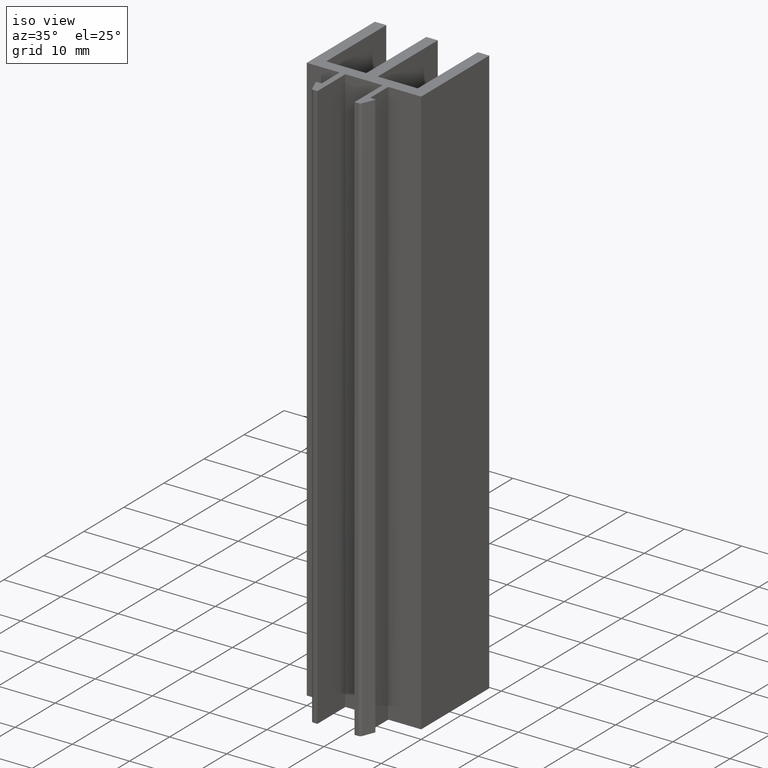
[diagram: clean part render]
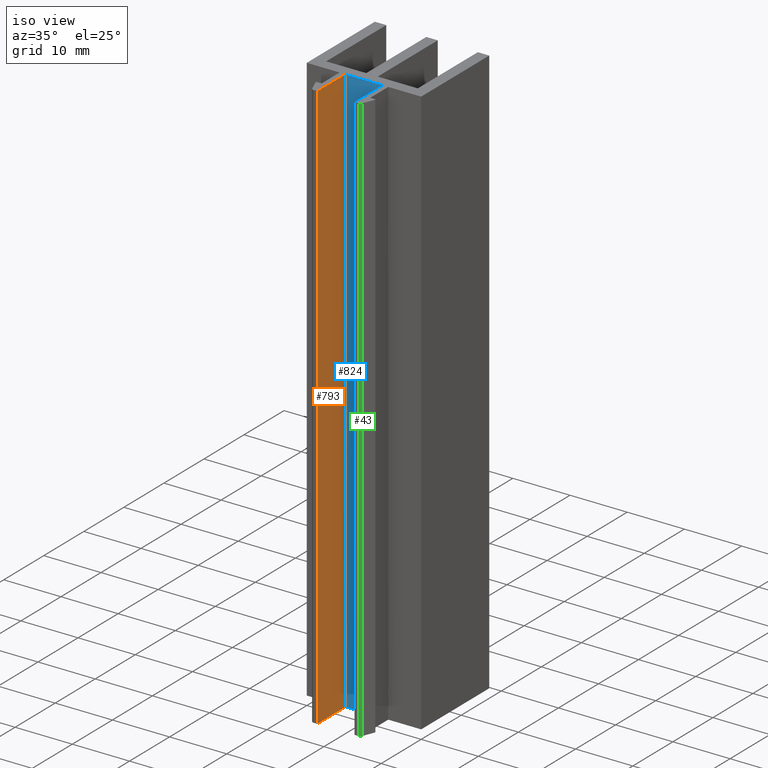
[diagram: same view with three faces highlighted in distinct colors, each labeled with its STEP entity id]
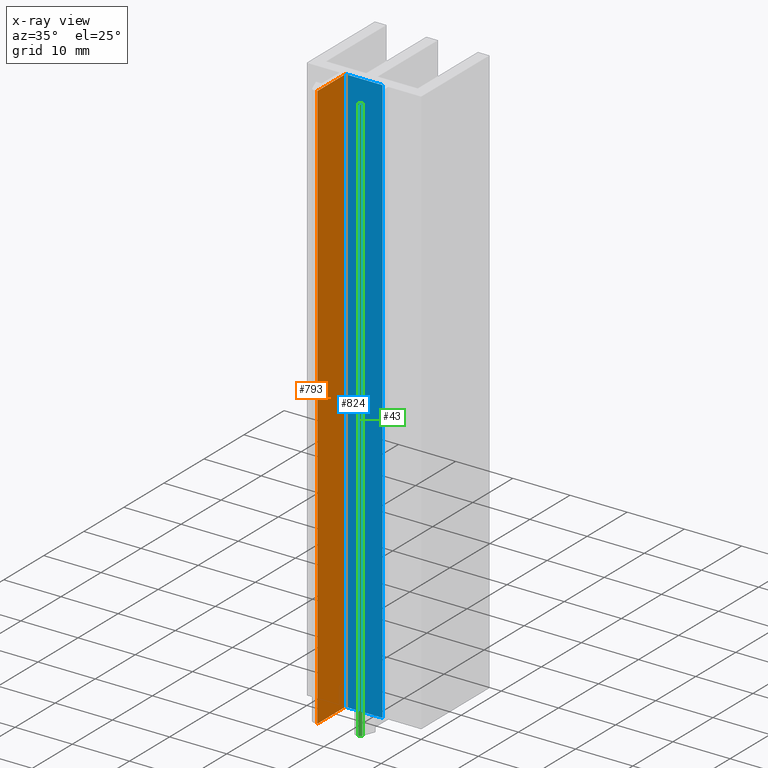
[diagram: x-ray of the same camera — body ghosted, the three highlighted faces saturated]
A machine part, iso view with three faces highlighted in distinct colors.
The next image is the same camera in x-ray (body ghosted, the three faces saturated) — at least one of them is partly hidden behind the body in this view.
Their STEP definitions:

[orange] entity #793 — the highlighted planar face has unit normal (1, 0, 0).
#737=CARTESIAN_POINT('',(-13.249999999947022,-6.999999999972033,0.0));
#738=VERTEX_POINT('',#737);
#745=CARTESIAN_POINT('',(-13.249999999947022,-6.999999999972033,100.0));
#746=VERTEX_POINT('',#745);
#747=CARTESIAN_POINT('',(-13.249999999947022,-6.999999999972033,0.0));
#748=DIRECTION('',(0.0,0.0,1.0));
#749=VECTOR('',#748,100.0);
#750=LINE('',#747,#749);
#751=EDGE_CURVE('',#738,#746,#750,.T.);
#763=CARTESIAN_POINT('',(-13.249999999947022,-6.999999999972033,0.0));
#764=DIRECTION('',(1.0,0.0,0.0));
#765=DIRECTION('',(0.0,1.0,0.0));
#766=AXIS2_PLACEMENT_3D('',#763,#764,#765);
#767=PLANE('',#766);
#768=CARTESIAN_POINT('',(-13.249999999947249,0.0,0.0));
#769=VERTEX_POINT('',#768);
#770=CARTESIAN_POINT('',(-13.249999999947022,-6.999999999972009,0.0));
#771=DIRECTION('',(0.0,1.0,0.0));
#772=VECTOR('',#771,6.999999999972009);
#773=LINE('',#770,#772);
#774=EDGE_CURVE('',#738,#769,#773,.T.);
#775=ORIENTED_EDGE('',*,*,#774,.T.);
#776=CARTESIAN_POINT('',(-13.249999999947249,0.0,100.0));
#777=VERTEX_POINT('',#776);
#778=CARTESIAN_POINT('',(-13.249999999947249,0.0,0.0));
#779=DIRECTION('',(0.0,0.0,1.0));
#780=VECTOR('',#779,100.0);
#781=LINE('',#778,#780);
#782=EDGE_CURVE('',#769,#777,#781,.T.);
#783=ORIENTED_EDGE('',*,*,#782,.T.);
#784=CARTESIAN_POINT('',(-13.249999999947022,-6.999999999972009,100.0));
#785=DIRECTION('',(0.0,1.0,0.0));
#786=VECTOR('',#785,6.999999999972009);
#787=LINE('',#784,#786);
#788=EDGE_CURVE('',#746,#777,#787,.T.);
#789=ORIENTED_EDGE('',*,*,#788,.F.);
#790=ORIENTED_EDGE('',*,*,#751,.F.);
#791=EDGE_LOOP('',(#775,#783,#789,#790));
#792=FACE_OUTER_BOUND('',#791,.T.);
#793=ADVANCED_FACE('',(#792),#767,.T.);

[blue] entity #824 — the highlighted planar face has unit normal (0, -1, 0).
#768=CARTESIAN_POINT('',(-13.249999999947249,0.0,0.0));
#769=VERTEX_POINT('',#768);
#776=CARTESIAN_POINT('',(-13.249999999947249,0.0,100.0));
#777=VERTEX_POINT('',#776);
#778=CARTESIAN_POINT('',(-13.249999999947249,0.0,0.0));
#779=DIRECTION('',(0.0,0.0,1.0));
#780=VECTOR('',#779,100.0);
#781=LINE('',#778,#780);
#782=EDGE_CURVE('',#769,#777,#781,.T.);
#794=CARTESIAN_POINT('',(-13.249999999947249,0.0,0.0));
#795=DIRECTION('',(0.0,-1.0,0.0));
#796=DIRECTION('',(1.0,0.0,0.0));
#797=AXIS2_PLACEMENT_3D('',#794,#795,#796);
#798=PLANE('',#797);
#799=CARTESIAN_POINT('',(-6.749999999973170,0.0,0.0));
#800=VERTEX_POINT('',#799);
#801=CARTESIAN_POINT('',(-13.249999999947168,0.0,0.0));
#802=DIRECTION('',(1.0,0.0,0.0));
#803=VECTOR('',#802,6.499999999973998);
#804=LINE('',#801,#803);
#805=EDGE_CURVE('',#769,#800,#804,.T.);
#806=ORIENTED_EDGE('',*,*,#805,.T.);
#807=CARTESIAN_POINT('',(-6.749999999973170,0.0,100.0));
#808=VERTEX_POINT('',#807);
#809=CARTESIAN_POINT('',(-6.749999999973170,0.0,0.0));
#810=DIRECTION('',(0.0,0.0,1.0));
#811=VECTOR('',#810,100.0);
#812=LINE('',#809,#811);
#813=EDGE_CURVE('',#800,#808,#812,.T.);
#814=ORIENTED_EDGE('',*,*,#813,.T.);
#815=CARTESIAN_POINT('',(-13.249999999947168,0.0,100.0));
#816=DIRECTION('',(1.0,0.0,0.0));
#817=VECTOR('',#816,6.499999999973998);
#818=LINE('',#815,#817);
#819=EDGE_CURVE('',#777,#808,#818,.T.);
#820=ORIENTED_EDGE('',*,*,#819,.F.);
#821=ORIENTED_EDGE('',*,*,#782,.F.);
#822=EDGE_LOOP('',(#806,#814,#820,#821));
#823=FACE_OUTER_BOUND('',#822,.T.);
#824=ADVANCED_FACE('',(#823),#798,.T.);

[green] entity #43 — the highlighted cylindrical surface (edge-blend (fillet) strip) has radius 0.5 mm, axis along (0, 0, 1).
#2=CARTESIAN_POINT('',(-6.088516480689123,-6.499999999974079,0.0));
#3=DIRECTION('',(0.0,0.0,1.0));
#4=DIRECTION('',(1.0,0.0,0.0));
#5=AXIS2_PLACEMENT_3D('',#2,#3,#4);
#6=CYLINDRICAL_SURFACE('',#5,0.499999999998001);
#7=CARTESIAN_POINT('',(-6.088516480689123,-6.999999999972033,0.0));
#8=VERTEX_POINT('',#7);
#9=CARTESIAN_POINT('',(-5.624278135248460,-6.685695338150254,0.0));
#10=VERTEX_POINT('',#9);
#11=CARTESIAN_POINT('',(-6.088516480689123,-6.499999999974079,0.0));
#12=DIRECTION('',(0.0,0.0,1.0));
#13=DIRECTION('',(1.0,0.0,0.0));
#14=AXIS2_PLACEMENT_3D('',#11,#12,#13);
#15=CIRCLE('',#14,0.499999999998001);
#16=EDGE_CURVE('',#8,#10,#15,.T.);
#17=ORIENTED_EDGE('',*,*,#16,.T.);
#18=CARTESIAN_POINT('',(-5.624278135248460,-6.685695338150254,100.0));
#19=VERTEX_POINT('',#18);
#20=CARTESIAN_POINT('',(-5.624278135248460,-6.685695338150254,0.0));
#21=DIRECTION('',(0.0,0.0,1.0));
#22=VECTOR('',#21,100.0);
#23=LINE('',#20,#22);
#24=EDGE_CURVE('',#10,#19,#23,.T.);
#25=ORIENTED_EDGE('',*,*,#24,.T.);
#26=CARTESIAN_POINT('',(-6.088516480689123,-6.999999999972033,100.0));
#27=VERTEX_POINT('',#26);
#28=CARTESIAN_POINT('',(-6.088516480689123,-6.499999999974079,100.0));
#29=DIRECTION('',(0.0,0.0,1.0));
#30=DIRECTION('',(1.0,0.0,0.0));
#31=AXIS2_PLACEMENT_3D('',#28,#29,#30);
#32=CIRCLE('',#31,0.499999999998001);
#33=EDGE_CURVE('',#27,#19,#32,.T.);
#34=ORIENTED_EDGE('',*,*,#33,.F.);
#35=CARTESIAN_POINT('',(-6.088516480689123,-6.999999999972033,0.0));
#36=DIRECTION('',(0.0,0.0,1.0));
#37=VECTOR('',#36,100.0);
#38=LINE('',#35,#37);
#39=EDGE_CURVE('',#8,#27,#38,.T.);
#40=ORIENTED_EDGE('',*,*,#39,.F.);
#41=EDGE_LOOP('',(#17,#25,#34,#40));
#42=FACE_OUTER_BOUND('',#41,.T.);
#43=ADVANCED_FACE('',(#42),#6,.T.);